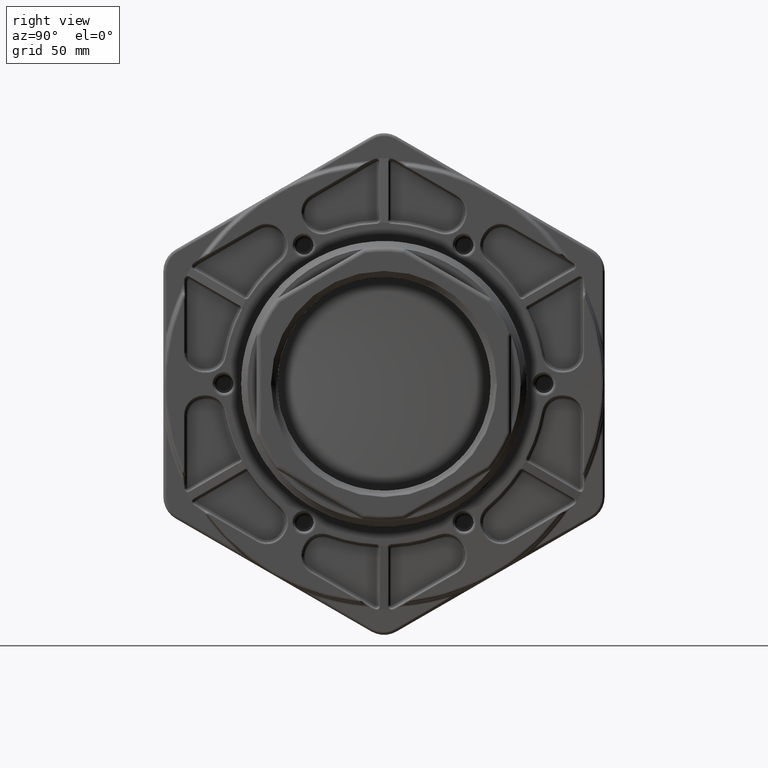
[diagram: clean part render]
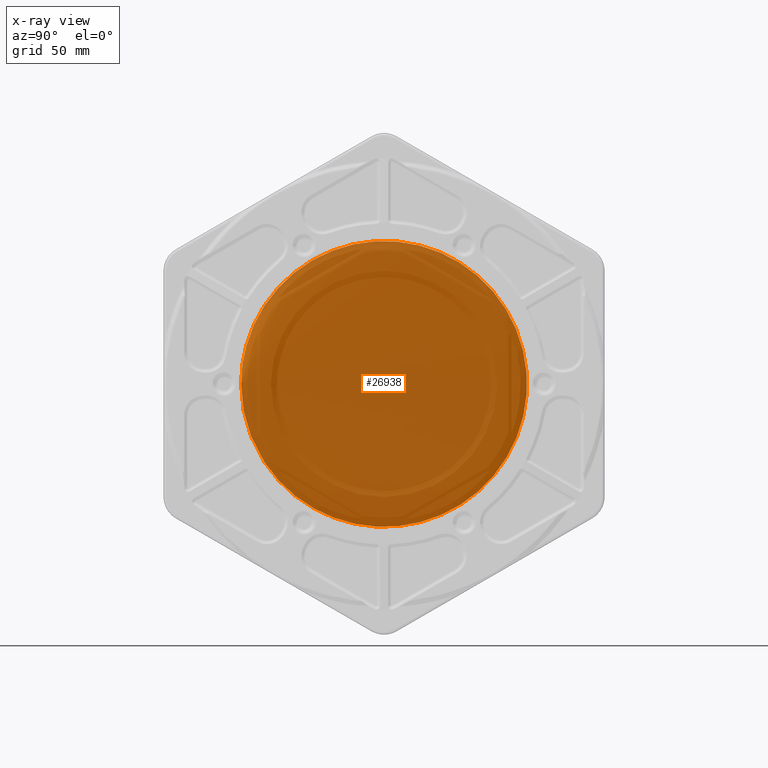
[diagram: x-ray — body ghosted, one internal face saturated and labeled with its STEP entity id]
A machine part, right view, then the same camera in x-ray: the body is ghosted and one INTERNAL B-rep face — a face not visible from any outside direction — is saturated and labeled: STEP entity #26938.
In plain terms, the highlighted cylindrical surface (bore or boss wall) has radius 73.025 mm, axis along (1, 0, 0).
Its self-contained STEP definition (entity closure, byte-faithful):
#3123=FACE_OUTER_BOUND('',#4926,.T.);
#4926=EDGE_LOOP('',(#17643,#17644,#17645));
#6797=B_SPLINE_CURVE_WITH_KNOTS('',3,(#40382,#40383,#40384,#40385,#40386,
#40387,#40388,#40389,#40390,#40391,#40392,#40393,#40394,#40395,#40396,#40397,
#40398),.UNSPECIFIED.,.F.,.F.,(4,1,1,1,1,1,1,1,1,1,1,1,1,1,4),(103.672557568463,
103.939748945253,104.437068318197,104.934387691141,105.431707064085,105.929026437028,
106.426345809972,106.923665182916,107.42098455586,107.918303928804,108.415623301747,
108.912942674691,109.410262047635,109.907581420579,109.955742875643),
 .UNSPECIFIED.);
#7796=LINE('',#40380,#9260);
#7797=LINE('',#40399,#9261);
#9260=VECTOR('',#32173,2.875);
#9261=VECTOR('',#32174,2.875);
#10726=VERTEX_POINT('',#40378);
#10727=VERTEX_POINT('',#40379);
#10728=VERTEX_POINT('',#40381);
#13318=EDGE_CURVE('',#10726,#10727,#7796,.T.);
#13319=EDGE_CURVE('',#10728,#10726,#6797,.T.);
#13320=EDGE_CURVE('',#10728,#10727,#7797,.T.);
#17643=ORIENTED_EDGE('',*,*,#13318,.F.);
#17644=ORIENTED_EDGE('',*,*,#13319,.F.);
#17645=ORIENTED_EDGE('',*,*,#13320,.T.);
#26285=CYLINDRICAL_SURFACE('',#28822,2.875);
#26938=ADVANCED_FACE('',(#3123),#26285,.T.);
#28822=AXIS2_PLACEMENT_3D('',#40377,#32171,#32172);
#32171=DIRECTION('center_axis',(1.,0.,0.));
#32172=DIRECTION('ref_axis',(0.,1.,0.));
#32173=DIRECTION('',(1.,0.,0.));
#32174=DIRECTION('',(-1.,0.,0.));
#40377=CARTESIAN_POINT('Origin',(1.1875,0.,0.));
#40378=CARTESIAN_POINT('',(1.89525,-2.875,2.25370602429717E-14));
#40379=CARTESIAN_POINT('',(2.04829807011286,-2.875,4.22609919865648E-14));
#40380=CARTESIAN_POINT('',(1.1875,-2.875,-3.52085954754864E-16));
#40381=CARTESIAN_POINT('',(2.06195,-2.875,4.22609919865648E-14));
#40382=CARTESIAN_POINT('Ctrl Pts',(2.06195,-2.87476220788632,1.62382672320086E-5));
#40383=CARTESIAN_POINT('Ctrl Pts',(2.05958703703704,-2.87471144486837,-0.256097778940806));
#40384=CARTESIAN_POINT('Ctrl Pts',(2.05282592592592,-2.77770042477675,-0.988950760418447));
#40385=CARTESIAN_POINT('Ctrl Pts',(2.04166666666667,-2.16244005884478,-2.07394016199681));
#40386=CARTESIAN_POINT('Ctrl Pts',(2.02847222222222,-0.911074521555549,
-2.85435071773115));
#40387=CARTESIAN_POINT('Ctrl Pts',(2.01527777777778,0.561017826558061,-2.94323526105611));
#40388=CARTESIAN_POINT('Ctrl Pts',(2.00208333333334,1.89719190153158,-2.31905965693059));
#40389=CARTESIAN_POINT('Ctrl Pts',(1.98888888888889,2.77373165676587,-1.13304346778704));
#40390=CARTESIAN_POINT('Ctrl Pts',(1.97569444444445,2.97827704908543,0.327476140399589));
#40391=CARTESIAN_POINT('Ctrl Pts',(1.9625,2.46127268971873,1.70865782135708));
#40392=CARTESIAN_POINT('Ctrl Pts',(1.94930555555556,1.34797367111472,2.67588149693172));
#40393=CARTESIAN_POINT('Ctrl Pts',(1.93611111111111,-0.0919000924315534,
2.99481705228401));
#40394=CARTESIAN_POINT('Ctrl Pts',(1.92291666666667,-1.50950914125147,2.58819569509692));
#40395=CARTESIAN_POINT('Ctrl Pts',(1.90972222222222,-2.56140810733325,1.55452993259297));
#40396=CARTESIAN_POINT('Ctrl Pts',(1.9005,-2.86289514952676,0.568816291231715));
#40397=CARTESIAN_POINT('Ctrl Pts',(1.89567592592593,-2.87521927988964,0.0461898065801952));
#40398=CARTESIAN_POINT('Ctrl Pts',(1.89525,-2.87518485888917,4.45776991560385E-5));
#40399=CARTESIAN_POINT('',(1.1875,-2.875,-3.52085954754864E-16));